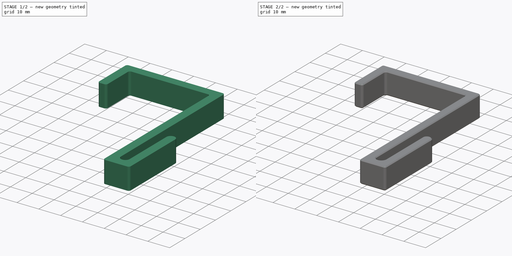
[diagram: build sequence overview — one tinted view per stage of 2, left to right]
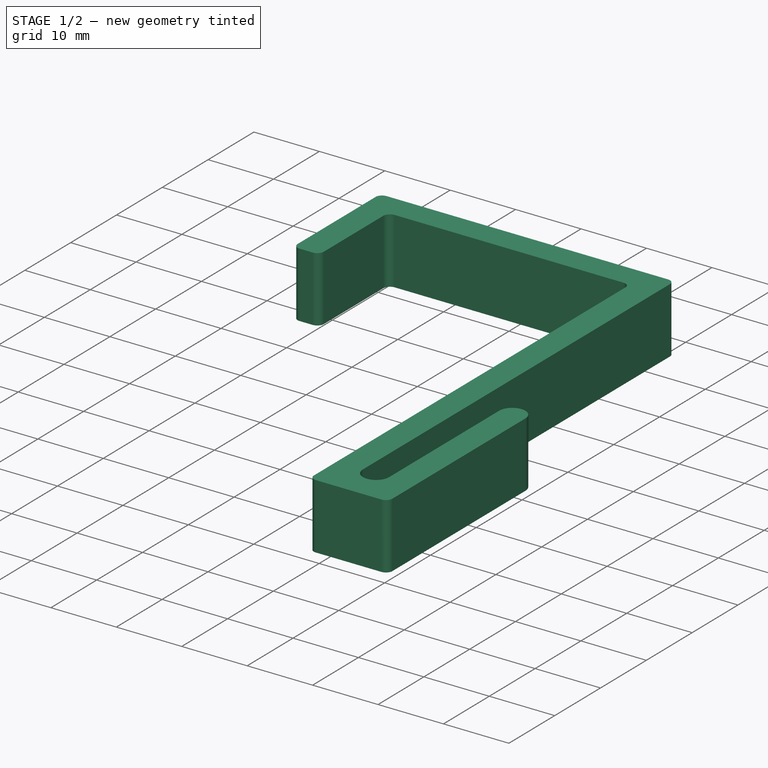
[diagram: stage 1 of 2 — iso view after this stage's code; geometry added in this stage tinted green]
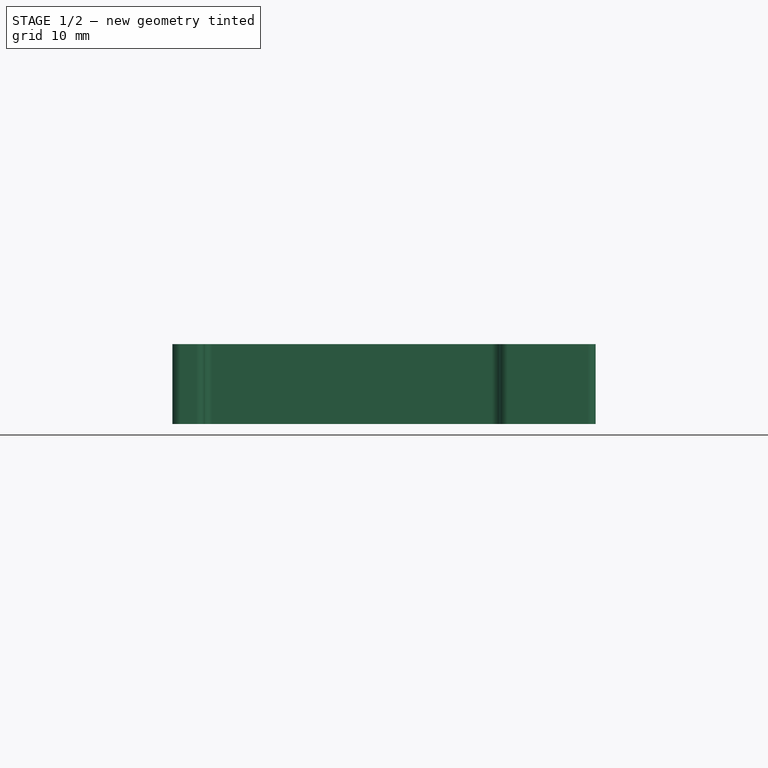
[diagram: stage 1 of 2 — front view after this stage's code; geometry added in this stage tinted green]
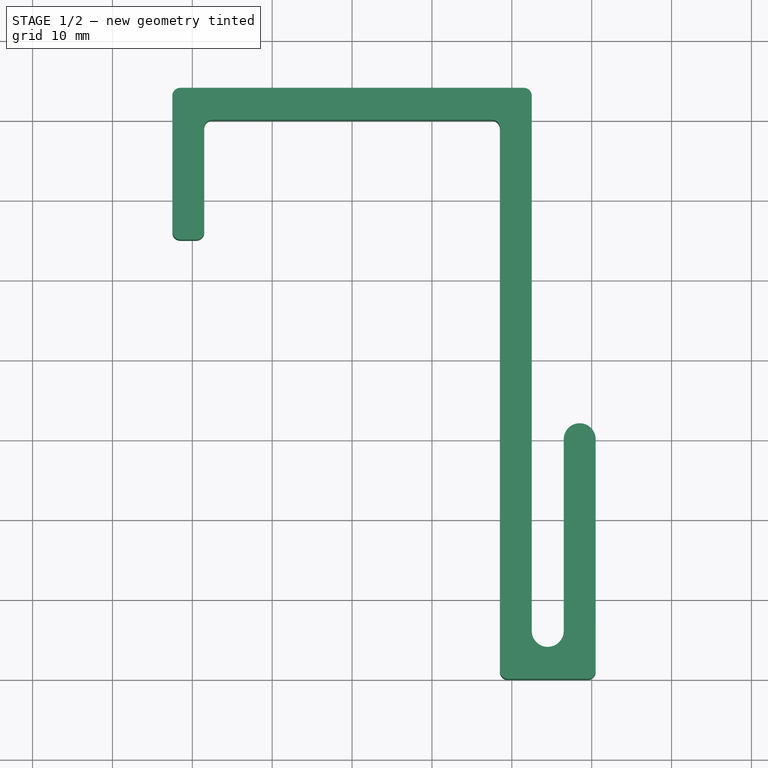
[diagram: stage 1 of 2 — top view after this stage's code; geometry added in this stage tinted green]
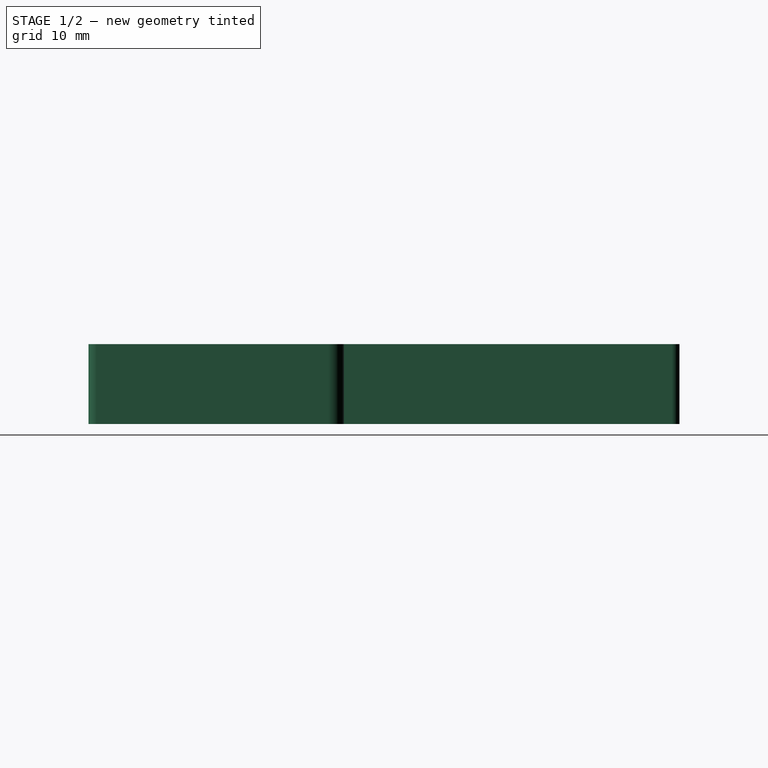
[diagram: stage 1 of 2 — right view after this stage's code; geometry added in this stage tinted green]
FCSTD DOCUMENT  (FreeCAD 0.22R36958 (Git))
Label: hook
License: All rights reserved
LicenseURL: http://en.wikipedia.org/wiki/All_rights_reserved
objects: Sketcher::SketchObject×1, PartDesign::Pad×1, PartDesign::Fillet×1, PartDesign::Chamfer×1, PartDesign::Body×1
note: 8 computed .brp shape members not serialized (recipe doc carries the construction recipe); baked Part::Feature solids carry a one-line shape summary decoded from their .brp

FEATURE [Sketcher::SketchObject] Sketch
  AttachmentSupport = -> [XY_Plane]
  FullyConstrained = true
  MapMode = 5
  sketch-geometry (17):
    g0: LineSegment StartX=-18.5 StartY=55 StartZ=0 EndX=-22.5 EndY=55 EndZ=0
    g1: LineSegment StartX=-22.5 StartY=55 StartZ=0 EndX=-22.5 EndY=74 EndZ=0
    g2: LineSegment StartX=-22.5 StartY=74 StartZ=0 EndX=22.5 EndY=74 EndZ=0
    g3: LineSegment StartX=22.5 StartY=74 StartZ=0 EndX=22.5 EndY=6 EndZ=0
    g4: LineSegment StartX=22.5 StartY=4 StartZ=0 EndX=26.5 EndY=4 EndZ=0
    g5: LineSegment StartX=26.5 StartY=6 StartZ=0 EndX=26.5 EndY=30 EndZ=0
    g6: LineSegment StartX=30.5 StartY=30 StartZ=0 EndX=30.5 EndY=0 EndZ=0
    g7: LineSegment StartX=30.5 StartY=0 StartZ=0 EndX=18.5 EndY=0 EndZ=0
    g8: LineSegment StartX=18.5 StartY=0 StartZ=0 EndX=18.5 EndY=70 EndZ=0
    g9: LineSegment StartX=18.5 StartY=70 StartZ=0 EndX=-18.5 EndY=70 EndZ=0
    g10: LineSegment StartX=-18.5 StartY=70 StartZ=0 EndX=-18.5 EndY=55 EndZ=0
    g11: LineSegment StartX=22.5 StartY=4 StartZ=0 EndX=22.5 EndY=0 EndZ=0
    g12: LineSegment StartX=22.5 StartY=4 StartZ=0 EndX=18.5 EndY=4 EndZ=0
    g13: LineSegment StartX=18.5 StartY=70 StartZ=0 EndX=18.5 EndY=74 EndZ=0
    g14: ArcOfCircle CenterX=24.5 CenterY=6 CenterZ=0 NormalX=0 NormalY=0 NormalZ=1 AngleXU=0 Radius=2 StartAngle=3.14159 EndAngle=6.28319
    g15: ArcOfCircle CenterX=28.5 CenterY=30 CenterZ=0 NormalX=0 NormalY=0 NormalZ=1 AngleXU=0 Radius=2 StartAngle=1.1e-14 EndAngle=3.14159
    g16: LineSegment StartX=30.5 StartY=30 StartZ=0 EndX=26.5 EndY=30 EndZ=0
  constraints (48):
    c: Coincident(g0,g1)
    c: Vertical(g1)
    c: Coincident(g1,g2)
    c: Horizontal(g2)
    c: Coincident(g2,g3)
    c: Vertical(g3)
    c: Horizontal(g4)
    c: Vertical(g5)
    c: Vertical(g6)
    c: Coincident(g6,g7)
    c: Horizontal(g7)
    c: Coincident(g7,g8)
    c: Vertical(g8)
    c: Coincident(g8,g9)
    c: Coincident(g9,g10)
    c: Coincident(g10,g0)
    c: Vertical(g10)
    c: Horizontal(g0)
    c: DistanceX(g0,g0) = 4
    c: Equal(g4,g0)
    c: Coincident(g11,g4)
    c: PointOnObject(g11,g7)
    c: Vertical(g11)
    c: Coincident(g12,g4)
    c: PointOnObject(g12,g8)
    c: Perpendicular(g12,g8)
    c: Equal(g4,g11)
    c: Equal(g11,g12)
    c: Coincident(g13,g8)
    c: PointOnObject(g13,g2)
    c: Vertical(g13)
    c: Equal(g13,g0)
    c: DistanceX(g9,g9) = 37
    c: DistanceY(g6,g6) = 30
    c: PointOnObject(g6,g-1)
    c: Symmetric(g9,g8,g-2)
    c: Tangent(g14,g4)
    c: Tangent(g5,g14) = -1.5708
    c: Tangent(g3,g14) = -1.5708
    c: Vertical(g4,g5)
    c: Vertical(g4,g3)
    c: Tangent(g15,g6) = 1.5708
    c: Tangent(g15,g5) = 1.5708
    c: Coincident(g16,g6)
    c: Coincident(g16,g5)
    c: Equal(g16,g11)
    c: DistanceY(g0,g9) = 15
    c: DistanceY(g8,g8) = 70
FEATURE [PartDesign::Pad] Pad
  Direction = (0,0,1)
  Length = 10
  Length2 = 10
  Profile = -> Sketch
  ReferenceAxis = -> Sketch [N_Axis]
  Suppressed = false
  Type = 0
FEATURE [PartDesign::Fillet] Fillet
  Base = -> Pad [Edge8,Edge14,Edge17,Edge20,Edge23,Edge5,Edge2,Edge11]
  BaseFeature = -> Pad
  Radius = 1
  SupportTransform = false
  Suppressed = false
  UseAllEdges = false
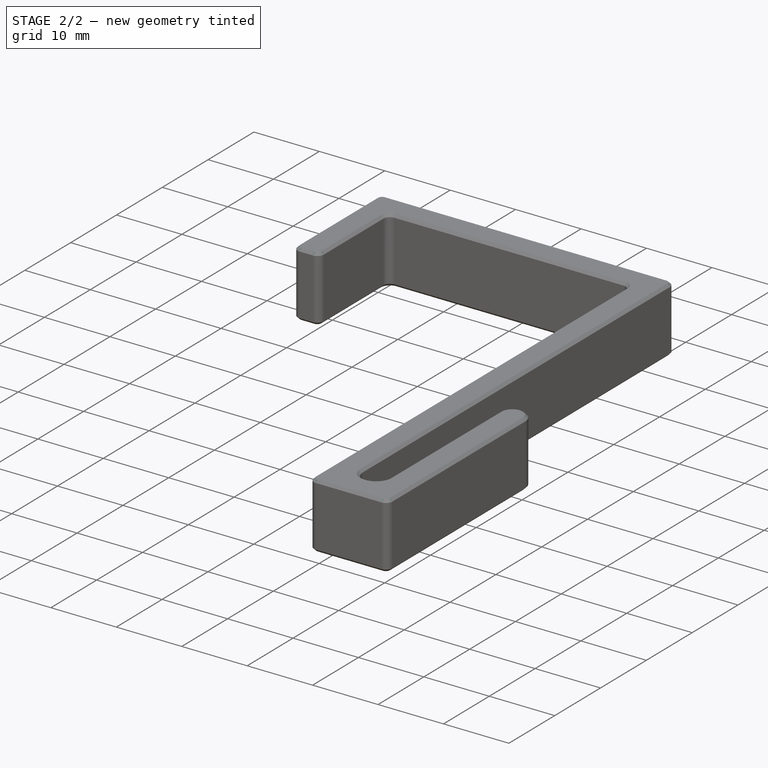
[diagram: stage 2 of 2 — iso view after this stage's code; geometry added in this stage tinted green]
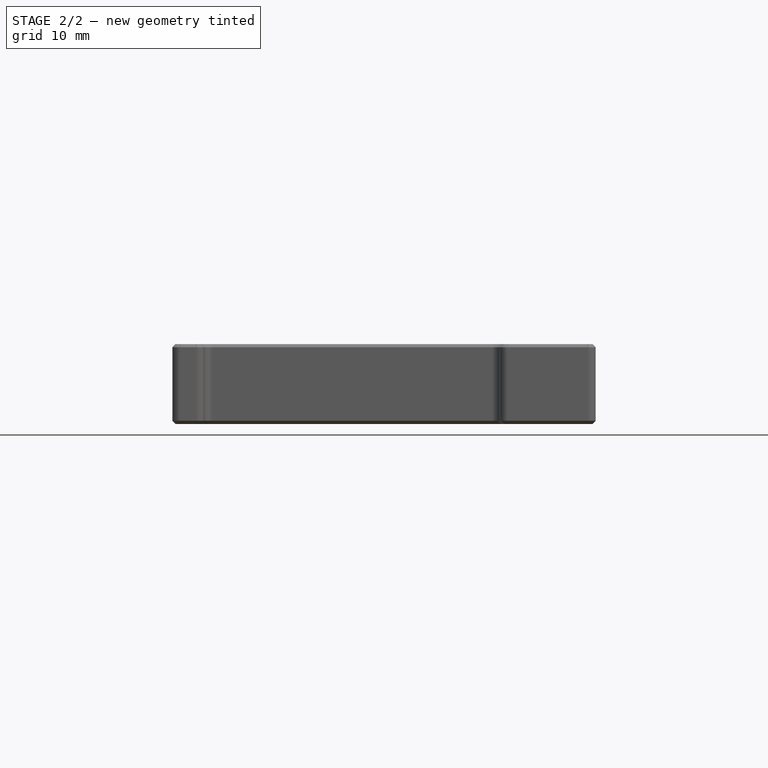
[diagram: stage 2 of 2 — front view after this stage's code; geometry added in this stage tinted green]
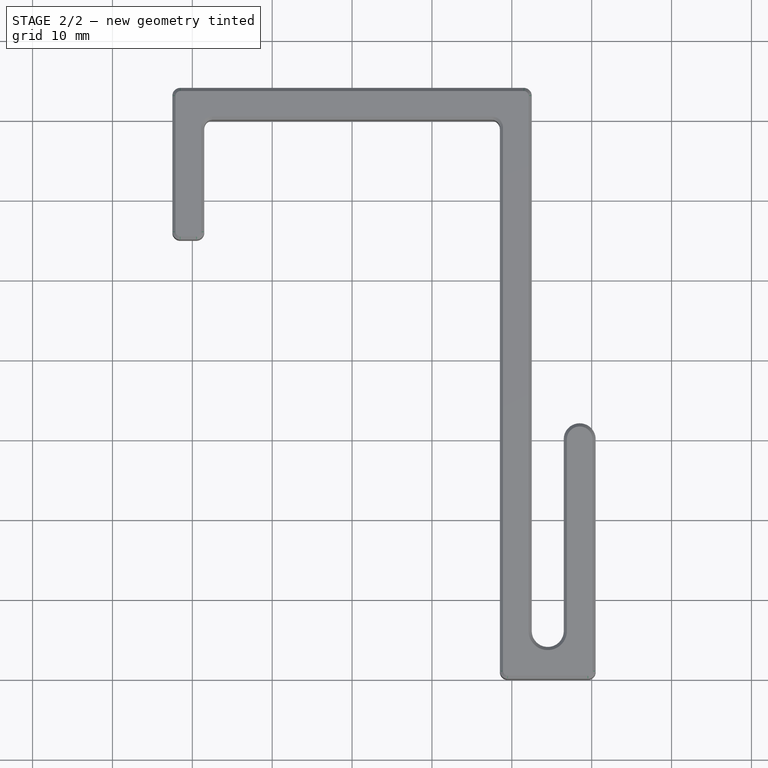
[diagram: stage 2 of 2 — top view after this stage's code; geometry added in this stage tinted green]
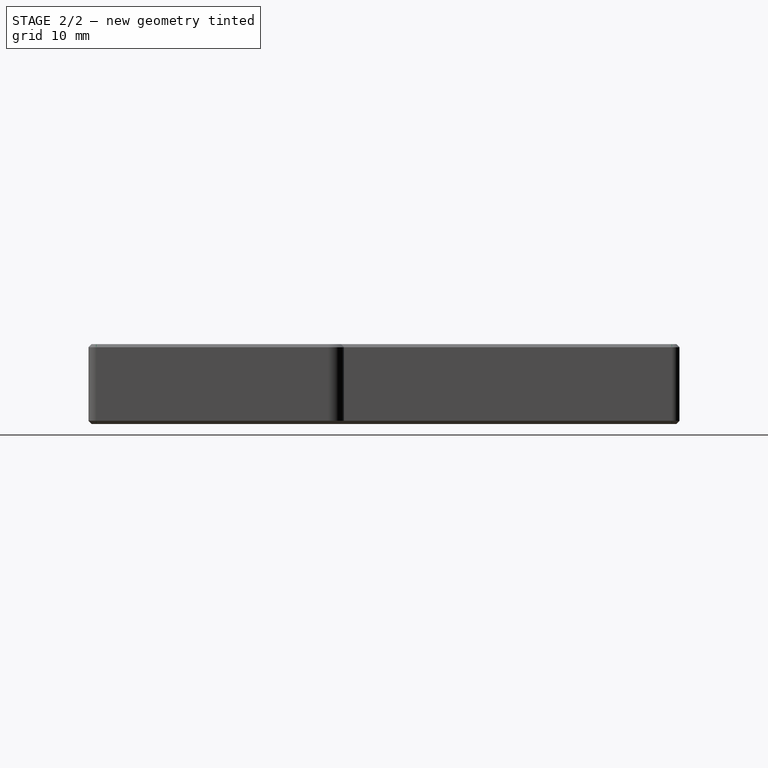
[diagram: stage 2 of 2 — right view after this stage's code; geometry added in this stage tinted green]
FEATURE [PartDesign::Chamfer] Chamfer
  Angle = 45
  Base = -> Fillet [Face5,Face2]
  BaseFeature = -> Fillet
  ChamferType = 0
  FlipDirection = false
  Size = 0.4
  Size2 = 1
  SupportTransform = false
  Suppressed = false
  UseAllEdges = false
FEATURE [PartDesign::Body] Body
  Group = -> [Sketch,Pad,Fillet,Chamfer]
  Origin = -> Origin
  Tip = -> Chamfer
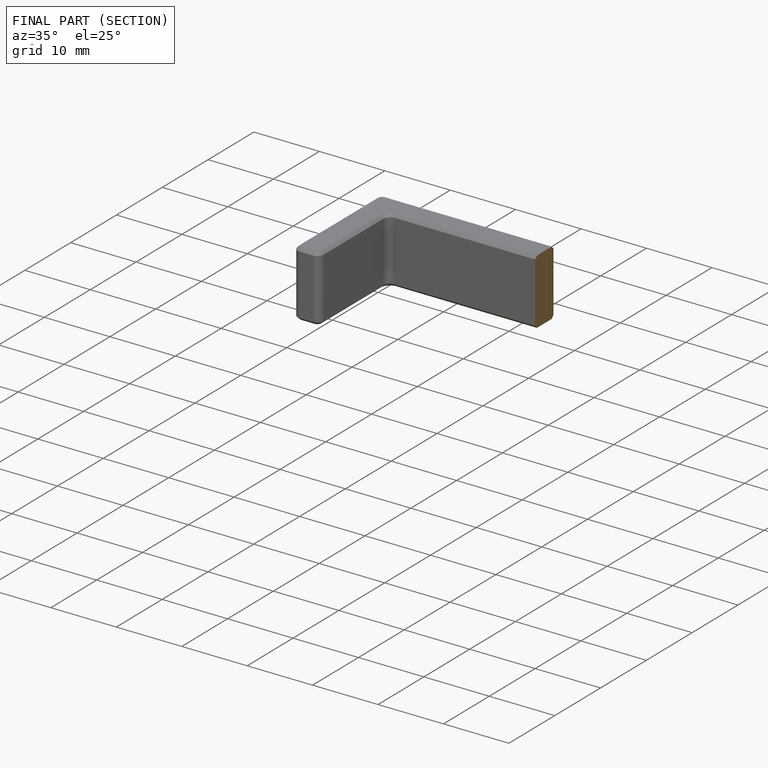
[diagram: finished part — half-section view (interior)]
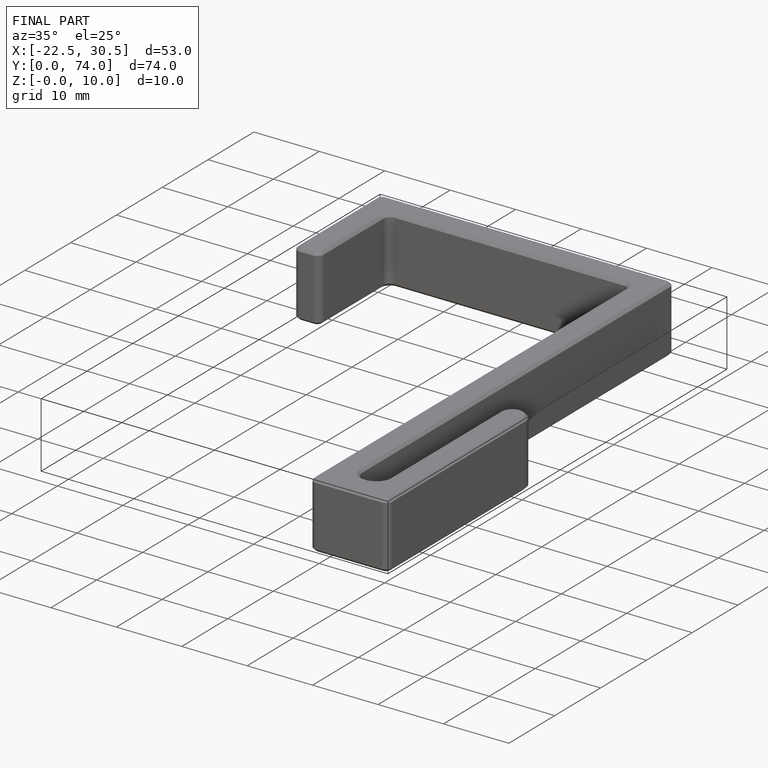
[diagram: finished part — iso view with bounding-box wireframe]
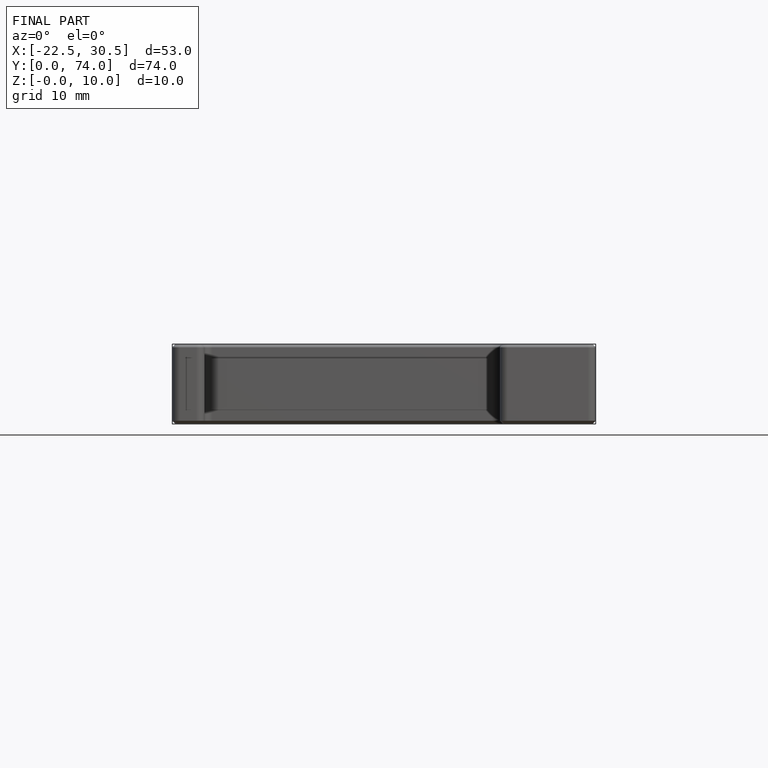
[diagram: finished part — front view with bounding-box wireframe]
